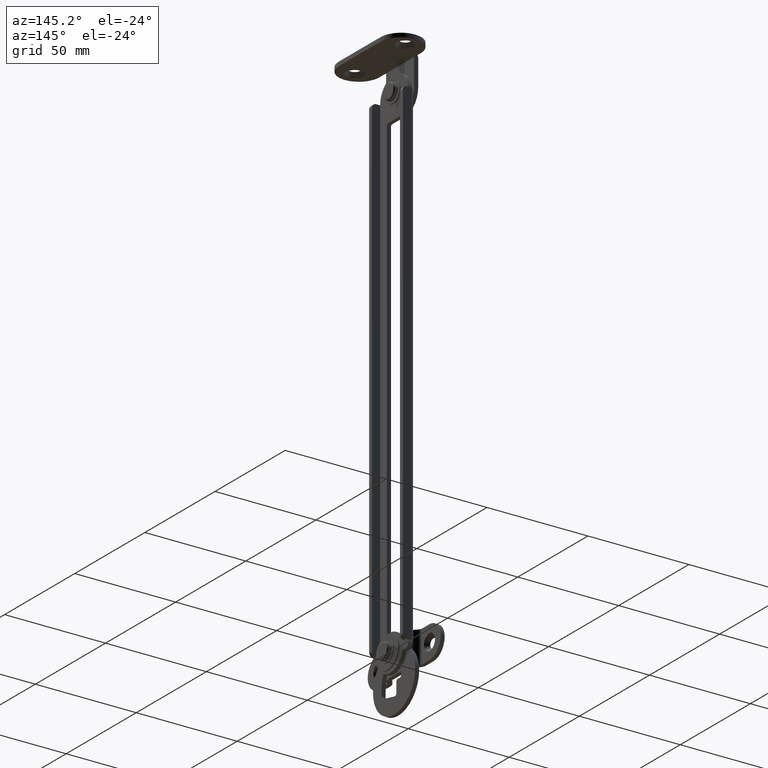
[diagram: clean part render]
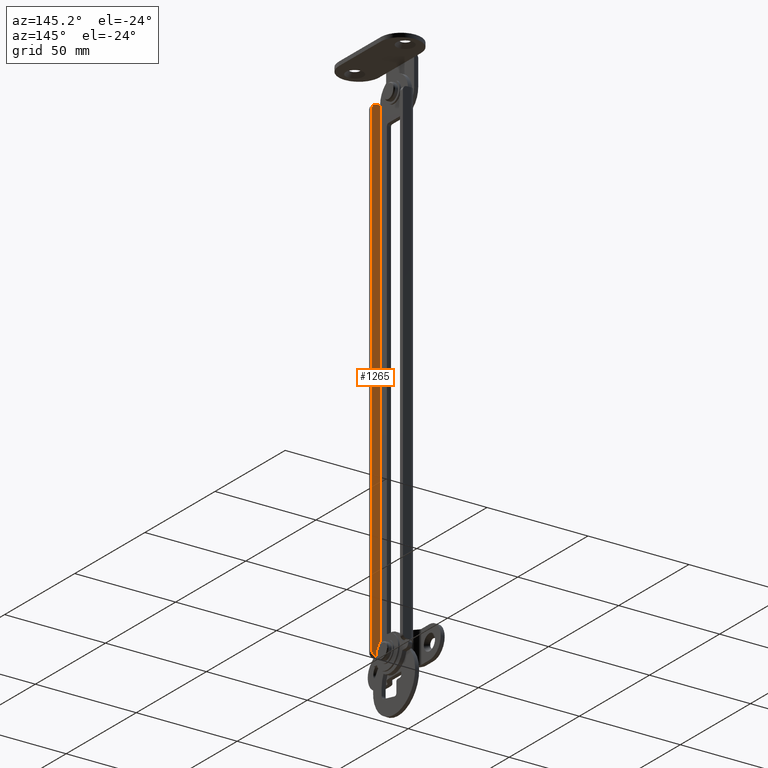
[diagram: same view with one face highlighted and labeled with its STEP entity id]
A machine part, auxiliary view. The second image highlights one B-rep face of the part: STEP entity #1265.
In plain terms, the highlighted face is a freeform B-spline surface patch.
Its self-contained STEP definition (entity closure, byte-faithful):
#573=CARTESIAN_POINT('',(9.000000000000119,-10.000000000000121,-248.000014999999990));
#574=VERTEX_POINT('',#573);
#580=CARTESIAN_POINT('',(11.0,-10.000000000000121,-246.000014999999990));
#581=VERTEX_POINT('',#580);
#582=CARTESIAN_POINT('',(9.000000000000119,-10.000000000000121,-248.000014999999990));
#583=CARTESIAN_POINT('',(9.360172631934699,-10.000000000000130,-248.000994286619800));
#584=CARTESIAN_POINT('',(9.980930337403091,-10.000000000000110,-247.827457837502610));
#585=CARTESIAN_POINT('',(10.549263656659329,-10.000000000000130,-247.312040684730310));
#586=CARTESIAN_POINT('',(10.904230581101199,-10.000000000000099,-246.719635022982490));
#587=CARTESIAN_POINT('',(11.000490366516020,-10.000000000000140,-246.294652914756110));
#588=CARTESIAN_POINT('',(11.0,-10.000000000000121,-246.000014999999990));
#589=B_SPLINE_CURVE_WITH_KNOTS('',3,(#582,#583,#584,#585,#586,#587,#588),.UNSPECIFIED.,.F.,.U.,(4,1,1,1,4),(0.000000612370019,1.080075592440811,1.865461962509801,2.258228333945807,3.141907766615468),.UNSPECIFIED.);
#590=EDGE_CURVE('',#574,#581,#589,.T.);
#669=CARTESIAN_POINT('',(11.0,-10.0,-4.0));
#670=VERTEX_POINT('',#669);
#671=CARTESIAN_POINT('',(9.000000000000119,-10.0,-2.0));
#672=VERTEX_POINT('',#671);
#673=CARTESIAN_POINT('',(11.0,-10.0,-4.0));
#674=CARTESIAN_POINT('',(11.000074994521800,-9.999999999999996,-3.803654502922747));
#675=CARTESIAN_POINT('',(10.936907867814440,-10.000000000000011,-3.378242072317956));
#676=CARTESIAN_POINT('',(10.623539594784550,-9.999999999999996,-2.755193226092362));
#677=CARTESIAN_POINT('',(9.980855771466727,-9.999999999999995,-2.172548550348460));
#678=CARTESIAN_POINT('',(9.360196274338815,-9.999999999999998,-1.999025699874041));
#679=CARTESIAN_POINT('',(9.000000000000119,-10.0,-2.0));
#680=B_SPLINE_CURVE_WITH_KNOTS('',3,(#673,#674,#675,#676,#677,#678,#679),.UNSPECIFIED.,.F.,.U.,(4,1,1,1,4),(0.000000612372655,0.589074621094949,1.276446416477908,2.061832786546100,3.141907766615500),.UNSPECIFIED.);
#681=EDGE_CURVE('',#670,#672,#680,.T.);
#1227=CARTESIAN_POINT('',(11.0,-10.000000000000121,-246.000014999999990));
#1228=CARTESIAN_POINT('',(11.0,-10.0,-4.0));
#1229=QUASI_UNIFORM_CURVE('',1,(#1227,#1228),.UNSPECIFIED.,.F.,.U.);
#1230=EDGE_CURVE('',#581,#670,#1229,.T.);
#1236=CARTESIAN_POINT('',(11.199799992247220,-10.000000000000121,10.287700272454231));
#1237=CARTESIAN_POINT('',(11.199799992247220,-10.000000000000121,-260.287721870688810));
#1238=CARTESIAN_POINT('',(6.800199900464416,-10.000000000000121,10.287700272454231));
#1239=CARTESIAN_POINT('',(6.800199900464416,-10.000000000000121,-260.287721870688810));
#1240=B_SPLINE_SURFACE_WITH_KNOTS('',1,1,((#1236,#1238),(#1237,#1239)),.UNSPECIFIED.,.F.,.F.,.U.,(2,2),(2,2),(0.0,270.575422143142990),(0.0,4.399600091782808),.UNSPECIFIED.);
#1241=ORIENTED_EDGE('',*,*,#1230,.F.);
#1242=ORIENTED_EDGE('',*,*,#590,.F.);
#1243=CARTESIAN_POINT('',(7.0,-10.0,-248.000014999999990));
#1244=VERTEX_POINT('',#1243);
#1245=CARTESIAN_POINT('',(9.000000000000119,-10.000000000000121,-248.000014999999990));
#1246=CARTESIAN_POINT('',(7.0,-10.0,-248.000014999999990));
#1247=QUASI_UNIFORM_CURVE('',1,(#1245,#1246),.UNSPECIFIED.,.F.,.U.);
#1248=EDGE_CURVE('',#574,#1244,#1247,.T.);
#1249=ORIENTED_EDGE('',*,*,#1248,.T.);
#1250=CARTESIAN_POINT('',(7.0,-10.0,-2.0));
#1251=VERTEX_POINT('',#1250);
#1252=CARTESIAN_POINT('',(7.0,-10.0,-2.0));
#1253=CARTESIAN_POINT('',(7.0,-10.0,-248.000014999999990));
#1254=QUASI_UNIFORM_CURVE('',1,(#1252,#1253),.UNSPECIFIED.,.F.,.U.);
#1255=EDGE_CURVE('',#1251,#1244,#1254,.T.);
#1256=ORIENTED_EDGE('',*,*,#1255,.F.);
#1257=CARTESIAN_POINT('',(9.000000000000119,-10.0,-2.0));
#1258=CARTESIAN_POINT('',(7.0,-10.0,-2.0));
#1259=QUASI_UNIFORM_CURVE('',1,(#1257,#1258),.UNSPECIFIED.,.F.,.U.);
#1260=EDGE_CURVE('',#672,#1251,#1259,.T.);
#1261=ORIENTED_EDGE('',*,*,#1260,.F.);
#1262=ORIENTED_EDGE('',*,*,#681,.F.);
#1263=EDGE_LOOP('',(#1241,#1242,#1249,#1256,#1261,#1262));
#1264=FACE_OUTER_BOUND('',#1263,.T.);
#1265=ADVANCED_FACE('',(#1264),#1240,.T.);